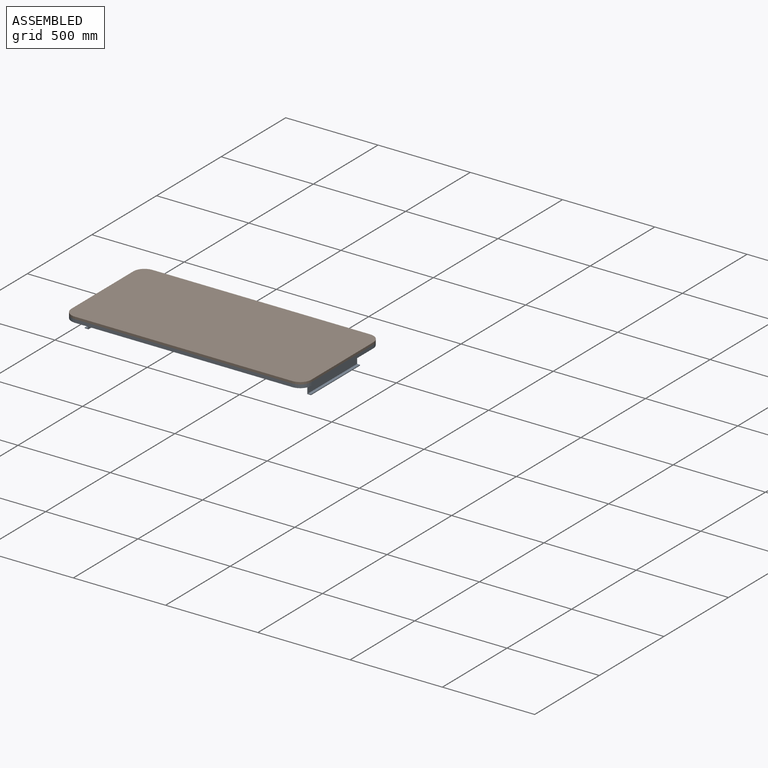
[diagram: assembled view]
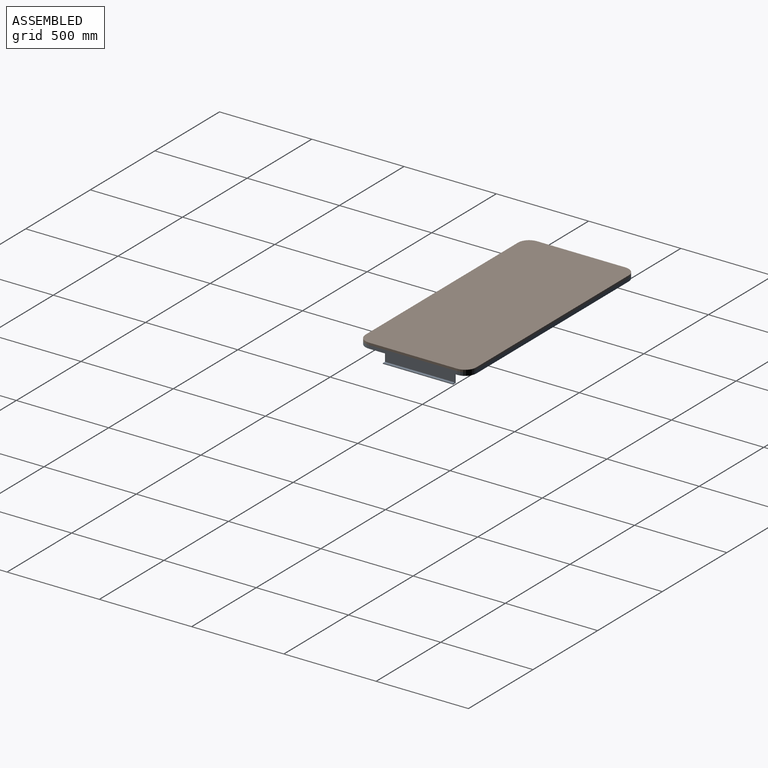
[diagram: assembled view, second angle]
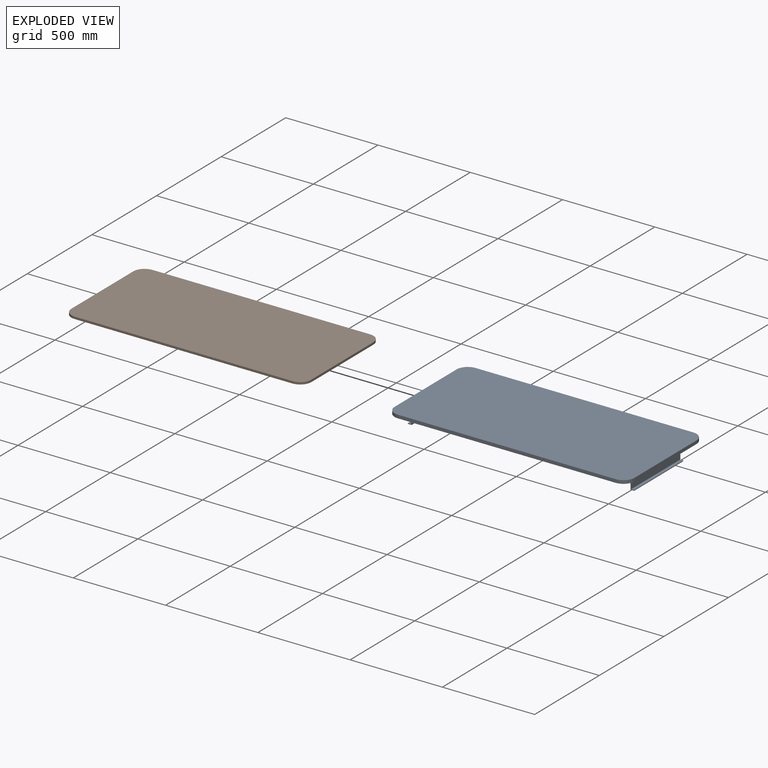
[diagram: exploded view]
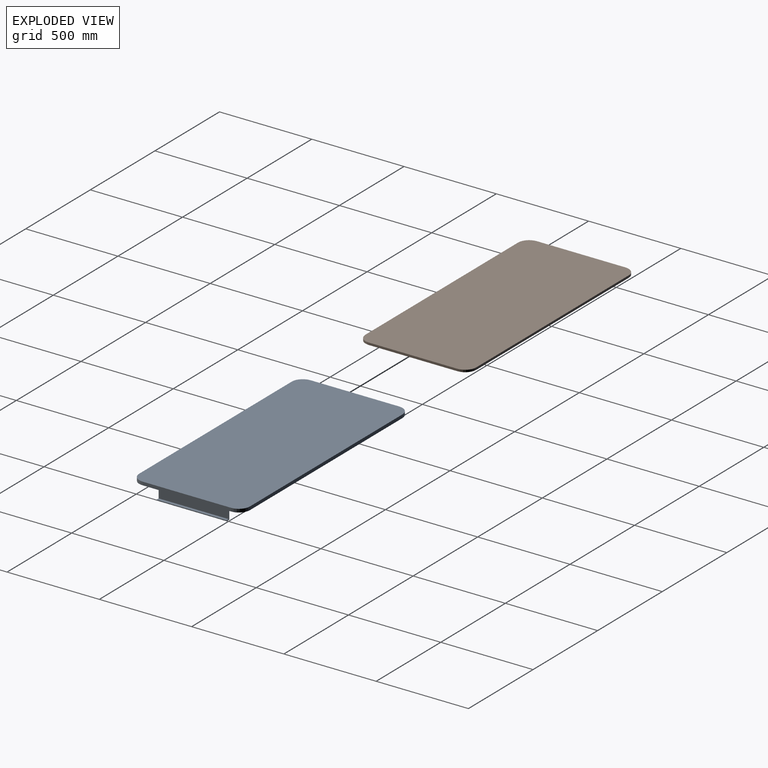
[diagram: exploded view, second angle]
ASSEMBLY  parts=2 mates=3
PART A: 35 faces, bbox 1300x600x93 mm
  f0: plane 1240x480mm, normal (0,0,-1), area 579828.3mm2, adj f11,f12,f13,f14,f15,f16,f17,f23
  f1: plane 1300x600mm, normal (0,0,-1), area 181881.4mm2, adj f2,f3,f4,f5,f6,f7,f8,f9
  f2: cylinder r=60mm len=60mm, axis (0,0,1), area 1696.5mm2, adj f1,f3,f9,f10
  f3: plane 1180x18mm, normal (0,1,0), area 21240mm2, adj f1,f2,f4,f10
  f4: cylinder r=60mm len=60mm, axis (0,0,1), area 1696.5mm2, adj f1,f3,f5,f10
  f5: plane 480x18mm, normal (1,0,0), area 8640mm2, adj f1,f4,f6,f10
  f6: cylinder r=60mm len=60mm, axis (0,0,1), area 1696.5mm2, adj f1,f5,f7,f10
  f7: plane 1180x18mm, normal (0,-1,0), area 21240mm2, adj f1,f6,f8,f10
  f8: cylinder r=60mm len=60mm, axis (0,0,1), area 1696.5mm2, adj f1,f7,f9,f10
  f9: plane 480x18mm, normal (-1,0,0), area 8640mm2, adj f1,f2,f8,f10
  f10: plane 1300x600mm, normal (0,0,1), area 776909.7mm2, adj f2,f3,f4,f5,f6,f7,f8,f9
  f11: plane 1200x6mm, normal (0,1,0), area 7200mm2, adj f0,f1,f15,f16
  f12: plane 460x6mm, normal (1,0,0), area 2760mm2, adj f0,f1,f13,f15
  f13: plane 1240x6mm, normal (0,-1,0), area 7440mm2, adj f0,f1,f12,f14
  f14: plane 460x6mm, normal (-1,0,0), area 2760mm2, adj f0,f1,f13,f16
  f15: cylinder r=20mm len=20mm, axis (0,0,1), area 188.5mm2, adj f0,f1,f11,f12
  f16: cylinder r=20mm len=20mm, axis (0,0,-1), area 188.5mm2, adj f0,f1,f11,f14
  f17: plane 380x4mm, normal (-1,0,0), area 1520mm2, adj f0,f18,f24,f25
  f18: plane 380x16mm, normal (0,0,-1), area 6080mm2, adj f17,f19,f24,f25
  f19: plane 380x73mm, normal (-1,0,0), area 27740mm2, adj f18,f20,f24,f25
  f20: plane 380x16mm, normal (0,0,1), area 6080mm2, adj f19,f21,f24,f25
  f21: plane 380x4mm, normal (-1,0,0), area 1520mm2, adj f20,f22,f24,f25
  f22: plane 380x20mm, normal (0,0,-1), area 7600mm2, adj f21,f23,f24,f25
  f23: plane 380x81mm, normal (1,0,0), area 30780mm2, adj f0,f22,f24,f25
  f24: plane 81x20mm, normal (0,1,0), area 452mm2, adj f0,f17,f18,f19,f20,f21,f22,f23
  f25: plane 81x20mm, normal (0,-1,0), area 452mm2, adj f0,f17,f18,f19,f20,f21,f22,f23
  f26: plane 380x4mm, normal (1,0,0), area 1520mm2, adj f0,f27,f33,f34
  f27: plane 380x16mm, normal (0,0,-1), area 6080mm2, adj f26,f28,f33,f34
  f28: plane 380x73mm, normal (1,0,0), area 27740mm2, adj f27,f29,f33,f34
  f29: plane 380x16mm, normal (0,0,1), area 6080mm2, adj f28,f30,f33,f34
  f30: plane 380x4mm, normal (1,0,0), area 1520mm2, adj f29,f31,f33,f34
  f31: plane 380x20mm, normal (0,0,-1), area 7600mm2, adj f30,f32,f33,f34
  f32: plane 380x81mm, normal (-1,0,0), area 30780mm2, adj f0,f31,f33,f34
  f33: plane 81x20mm, normal (0,1,0), area 452mm2, adj f0,f26,f27,f28,f29,f30,f31,f32
  f34: plane 81x20mm, normal (0,-1,0), area 452mm2, adj f0,f26,f27,f28,f29,f30,f31,f32
PART B: 10 faces, bbox 1300x600x12 mm
  f0: plane 1180x12mm, normal (0,1,0), area 14160mm2, adj f1,f7,f8,f9
  f1: cylinder r=60mm len=60mm, axis (0,0,-1), area 1131mm2, adj f0,f2,f8,f9
  f2: plane 480x12mm, normal (-1,0,0), area 5760mm2, adj f1,f3,f8,f9
  f3: cylinder r=60mm len=60mm, axis (0,0,-1), area 1131mm2, adj f2,f4,f8,f9
  f4: plane 1180x12mm, normal (0,-1,0), area 14160mm2, adj f3,f5,f8,f9
  f5: cylinder r=60mm len=60mm, axis (0,0,-1), area 1131mm2, adj f4,f6,f8,f9
  f6: plane 480x12mm, normal (1,0,0), area 5760mm2, adj f5,f7,f8,f9
  f7: cylinder r=60mm len=60mm, axis (0,0,-1), area 1131mm2, adj f0,f6,f8,f9
  f8: plane 1300x600mm, normal (0,0,1), area 776909.7mm2, adj f0,f1,f2,f3,f4,f5,f6,f7
  f9: plane 1300x600mm, normal (0,0,-1), area 776909.7mm2, adj f0,f1,f2,f3,f4,f5,f6,f7
PLACE A t=(-323.02,-470.87,2.43)mm
PLACE B t=(-323.02,-470.87,2.43)mm
MATE planar B.f2 <-> A.f9  axis (-1,0,0) through (-973.02,-170.87,8.43)mm
MATE planar A.f8 <-> B.f9  axis (0,0,1) through (-913.02,-410.87,2.43)mm
MATE planar A.f7 <-> B.f4  axis (0,-1,0) through (-323.02,-470.87,-6.57)mm
